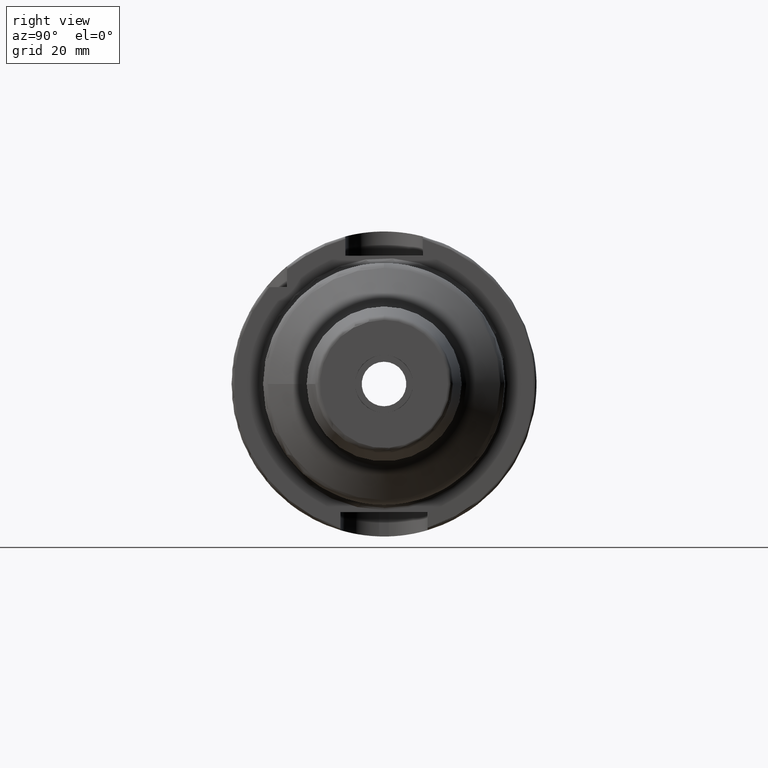
[diagram: clean part render]
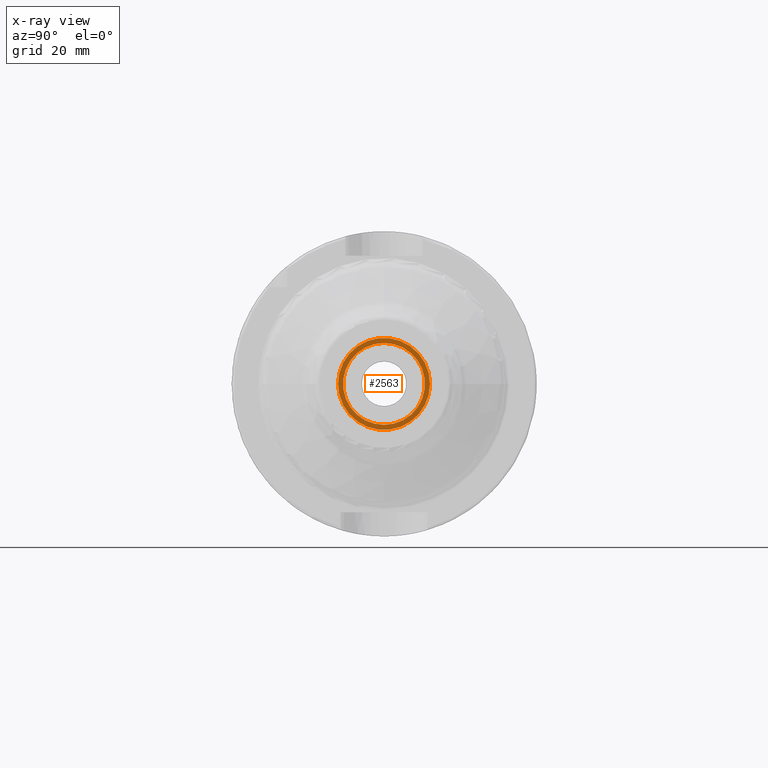
[diagram: x-ray — body ghosted, one internal face saturated and labeled with its STEP entity id]
A machine part, right view, then the same camera in x-ray: the body is ghosted and one INTERNAL B-rep face — a face not visible from any outside direction — is saturated and labeled: STEP entity #2563.
In plain terms, the highlighted planar face has unit normal (-1, 0, 0).
Its self-contained STEP definition (entity closure, byte-faithful):
#132=FACE_BOUND('',#347,.T.);
#143=PLANE('',#2732);
#209=FACE_OUTER_BOUND('',#346,.T.);
#346=EDGE_LOOP('',(#1696,#1697));
#347=EDGE_LOOP('',(#1698,#1699));
#728=CIRCLE('',#2724,8.45873400000001);
#729=CIRCLE('',#2725,8.45873400000001);
#732=CIRCLE('',#2730,9.5);
#733=CIRCLE('',#2731,9.5);
#956=VERTEX_POINT('',#3963);
#957=VERTEX_POINT('',#3965);
#960=VERTEX_POINT('',#3974);
#961=VERTEX_POINT('',#3976);
#1255=EDGE_CURVE('',#957,#956,#728,.T.);
#1256=EDGE_CURVE('',#956,#957,#729,.T.);
#1260=EDGE_CURVE('',#960,#961,#732,.T.);
#1261=EDGE_CURVE('',#961,#960,#733,.T.);
#1696=ORIENTED_EDGE('',*,*,#1261,.F.);
#1697=ORIENTED_EDGE('',*,*,#1260,.F.);
#1698=ORIENTED_EDGE('',*,*,#1255,.T.);
#1699=ORIENTED_EDGE('',*,*,#1256,.T.);
#2563=ADVANCED_FACE('',(#209,#132),#143,.F.);
#2724=AXIS2_PLACEMENT_3D('',#3966,#3109,#3110);
#2725=AXIS2_PLACEMENT_3D('',#3967,#3111,#3112);
#2730=AXIS2_PLACEMENT_3D('',#3977,#3122,#3123);
#2731=AXIS2_PLACEMENT_3D('',#3978,#3124,#3125);
#2732=AXIS2_PLACEMENT_3D('',#3979,#3126,#3127);
#3109=DIRECTION('center_axis',(-1.,0.,0.));
#3110=DIRECTION('ref_axis',(0.,0.,1.));
#3111=DIRECTION('center_axis',(-1.,0.,0.));
#3112=DIRECTION('ref_axis',(0.,0.,1.));
#3122=DIRECTION('center_axis',(-1.,0.,0.));
#3123=DIRECTION('ref_axis',(0.,0.,1.));
#3124=DIRECTION('center_axis',(-1.,0.,0.));
#3125=DIRECTION('ref_axis',(0.,0.,1.));
#3126=DIRECTION('center_axis',(-1.,0.,0.));
#3127=DIRECTION('ref_axis',(0.,0.,1.));
#3963=CARTESIAN_POINT('',(24.,-1.03589615179389E-15,-8.458734));
#3965=CARTESIAN_POINT('',(24.,0.,8.458734));
#3966=CARTESIAN_POINT('Origin',(24.,0.,0.));
#3967=CARTESIAN_POINT('Origin',(24.,0.,0.));
#3974=CARTESIAN_POINT('',(24.,-9.5,1.16341445918999E-15));
#3976=CARTESIAN_POINT('',(24.,9.5,0.));
#3977=CARTESIAN_POINT('Origin',(24.,0.,0.));
#3978=CARTESIAN_POINT('Origin',(24.,0.,0.));
#3979=CARTESIAN_POINT('Origin',(24.,7.,0.));